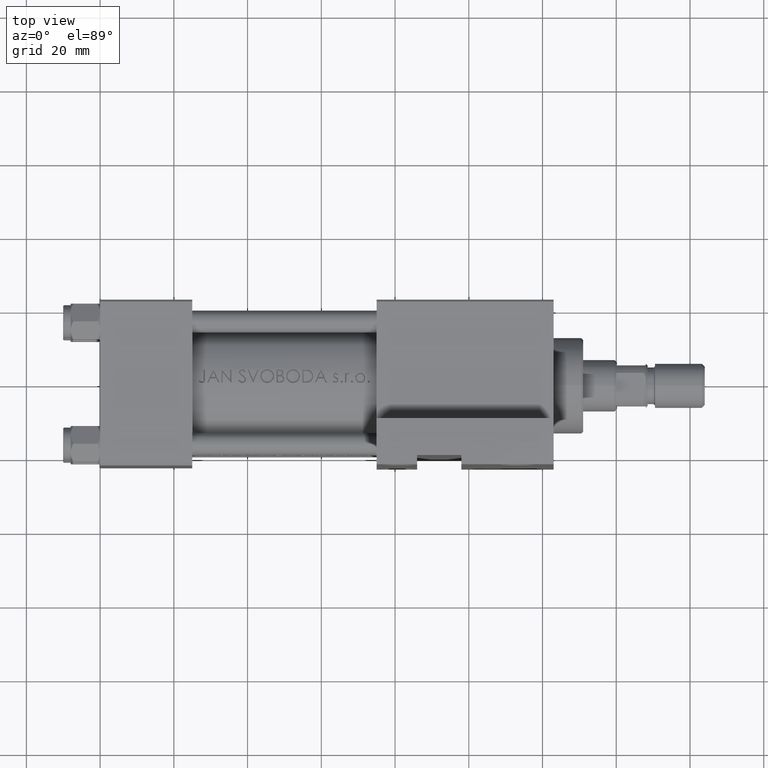
[diagram: clean part render]
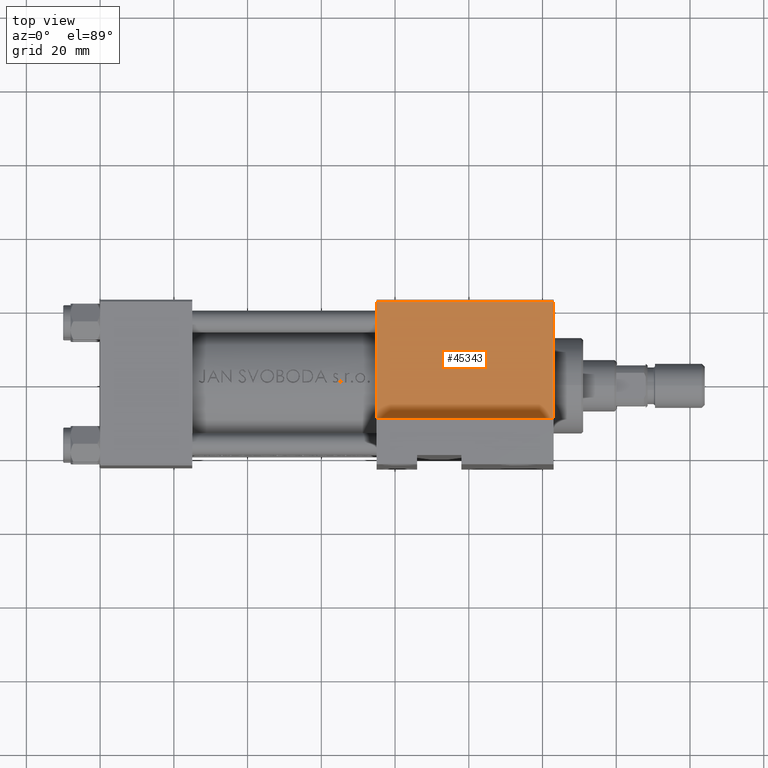
[diagram: same view with one face highlighted and labeled with its STEP entity id]
A machine part, top view. The second image highlights one B-rep face of the part: STEP entity #45343.
In plain terms, the highlighted planar face has unit normal (0, 0, -1).
Its self-contained STEP definition (entity closure, byte-faithful):
#227 = CARTESIAN_POINT ( 'NONE',  ( 75.00000000000001421, -22.50000000000000000, -9.999999999999998224 ) ) ;
#311 = EDGE_CURVE ( 'NONE', #17291, #24089, #23798, .T. ) ;
#1163 = VECTOR ( 'NONE', #35497, 1000.000000000000000 ) ;
#1718 = ORIENTED_EDGE ( 'NONE', *, *, #6143, .T. ) ;
#3658 = CARTESIAN_POINT ( 'NONE',  ( 75.00000000000001421, -22.49999999999999645, 22.49999999999999289 ) ) ;
#5659 = DIRECTION ( 'NONE',  ( -0.000000000000000000, 1.000000000000000000, 0.000000000000000000 ) ) ;
#6027 = ORIENTED_EDGE ( 'NONE', *, *, #26135, .T. ) ;
#6143 = EDGE_CURVE ( 'NONE', #19086, #17291, #26305, .T. ) ;
#7764 = DIRECTION ( 'NONE',  ( -1.000000000000000000, 0.000000000000000000, 0.000000000000000000 ) ) ;
#8756 = LINE ( 'NONE', #31404, #32081 ) ;
#11191 = LINE ( 'NONE', #33589, #35185 ) ;
#12233 = PLANE ( 'NONE',  #18029 ) ;
#14818 = VERTEX_POINT ( 'NONE', #16726 ) ;
#16465 = CARTESIAN_POINT ( 'NONE',  ( 75.00000000000001421, -22.50000000000000000, -9.999999999999998224 ) ) ;
#16726 = CARTESIAN_POINT ( 'NONE',  ( 123.0000000000000142, -22.49999999999999645, 21.99999999999997868 ) ) ;
#17291 = VERTEX_POINT ( 'NONE', #227 ) ;
#18011 = DIRECTION ( 'NONE',  ( 0.000000000000000000, 0.000000000000000000, -1.000000000000000000 ) ) ;
#18029 = AXIS2_PLACEMENT_3D ( 'NONE', #24162, #5659, #23448 ) ;
#18230 = ORIENTED_EDGE ( 'NONE', *, *, #21940, .F. ) ;
#19086 = VERTEX_POINT ( 'NONE', #23501 ) ;
#21940 = EDGE_CURVE ( 'NONE', #14818, #24089, #8756, .T. ) ;
#22494 = CARTESIAN_POINT ( 'NONE',  ( 123.0000000000000142, -22.49999999999999645, -9.999999999999980460 ) ) ;
#23448 = DIRECTION ( 'NONE',  ( 0.000000000000000000, -0.000000000000000000, 1.000000000000000000 ) ) ;
#23501 = CARTESIAN_POINT ( 'NONE',  ( 75.00000000000001421, -22.49999999999999645, 21.99999999999997868 ) ) ;
#23798 = LINE ( 'NONE', #16465, #1163 ) ;
#24089 = VERTEX_POINT ( 'NONE', #22494 ) ;
#24162 = CARTESIAN_POINT ( 'NONE',  ( 123.0000000000000142, -22.49999999999999645, 22.49999999999999289 ) ) ;
#26135 = EDGE_CURVE ( 'NONE', #14818, #19086, #11191, .T. ) ;
#26305 = LINE ( 'NONE', #3658, #28425 ) ;
#28425 = VECTOR ( 'NONE', #18011, 1000.000000000000000 ) ;
#31404 = CARTESIAN_POINT ( 'NONE',  ( 123.0000000000000142, -22.49999999999999645, 22.49999999999999289 ) ) ;
#31636 = DIRECTION ( 'NONE',  ( 0.000000000000000000, 0.000000000000000000, -1.000000000000000000 ) ) ;
#32081 = VECTOR ( 'NONE', #31636, 1000.000000000000000 ) ;
#33589 = CARTESIAN_POINT ( 'NONE',  ( 123.0000000000000142, -22.49999999999999645, 21.99999999999997868 ) ) ;
#35185 = VECTOR ( 'NONE', #7764, 1000.000000000000000 ) ;
#35497 = DIRECTION ( 'NONE',  ( 1.000000000000000000, -1.445602896647340149E-16, 0.000000000000000000 ) ) ;
#40747 = ORIENTED_EDGE ( 'NONE', *, *, #311, .T. ) ;
#44129 = EDGE_LOOP ( 'NONE', ( #18230, #6027, #1718, #40747 ) ) ;
#45343 = ADVANCED_FACE ( 'NONE', ( #46337 ), #12233, .F. ) ;
#46337 = FACE_OUTER_BOUND ( 'NONE', #44129, .T. ) ;